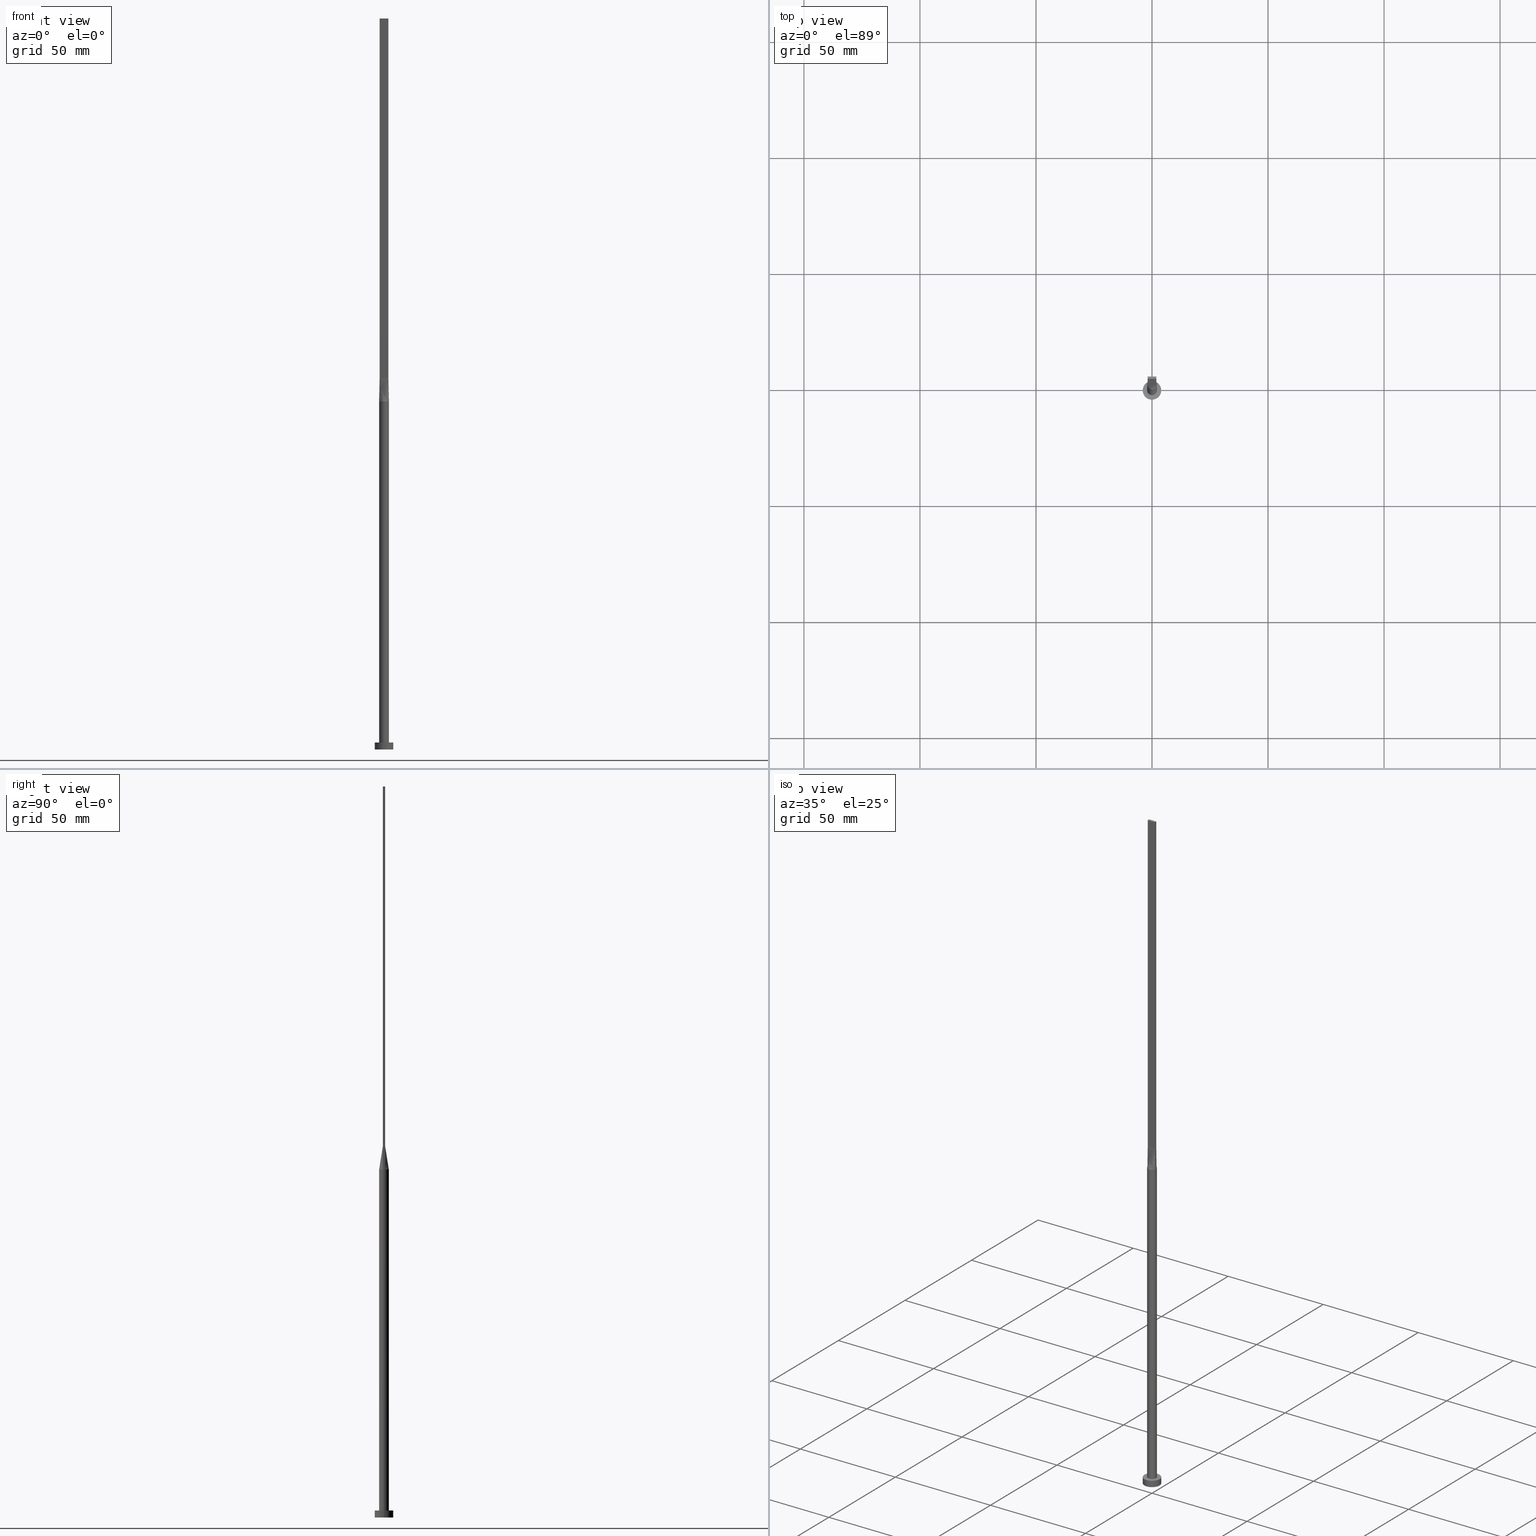
[diagram: canonical four-view strip — front | top / right | iso, engineering-drawing reading convention]
A machine part, canonical four-view strip (front | top / right | iso — engineering-drawing reading convention). The complete STEP part file that produces these views, byte-faithful:
ISO-10303-21;
HEADER;
FILE_DESCRIPTION (( 'STEP AP203' ),
    '1' );
FILE_NAME ('6265.STEP',
    '2023-02-13T13:20:51',
    ( '' ),
    ( '' ),
    'SwSTEP 2.0',
    'SolidWorks 2019',
    '' );
FILE_SCHEMA (( 'CONFIG_CONTROL_DESIGN' ));
ENDSEC;

DATA;
#1 = VERTEX_POINT ( 'NONE', #473 ) ;
#2 = AXIS2_PLACEMENT_3D ( 'NONE', #145, #16, #108 ) ;
#3 = CC_DESIGN_DATE_AND_TIME_ASSIGNMENT ( #298, #303, ( #184 ) ) ;
#4 = APPROVAL_ROLE ( '' ) ;
#5 = AXIS2_PLACEMENT_3D ( 'NONE', #356, #500, #581 ) ;
#6 = ORIENTED_EDGE ( 'NONE', *, *, #370, .F. ) ;
#7 = CARTESIAN_POINT ( 'NONE',  ( -1.719043754744861596, 1.223020672007445242, 149.9999999999999716 ) ) ;
#8 = CARTESIAN_POINT ( 'NONE',  ( -0.3166666666666652641, -0.4999999999999997780, 159.9999999999999716 ) ) ;
#9 = COORDINATED_UNIVERSAL_TIME_OFFSET ( 1, 0, .AHEAD. ) ;
#10 = CIRCLE ( 'NONE', #60, 4.000000000000000000 ) ;
#11 = APPROVAL_PERSON_ORGANIZATION ( #229, #418, #4 ) ;
#12 = CARTESIAN_POINT ( 'NONE',  ( 1.235326090059014614, 1.714395692508636770, 150.0000000000000568 ) ) ;
#13 = VERTEX_POINT ( 'NONE', #154 ) ;
#14 = EDGE_CURVE ( 'NONE', #186, #139, #88, .T. ) ;
#15 = CARTESIAN_POINT ( 'NONE',  ( -0.1583333333333339921, 0.5000000000000002220, 159.9999999999999716 ) ) ;
#16 = DIRECTION ( 'NONE',  ( 0.000000000000000000, 0.000000000000000000, 1.000000000000000000 ) ) ;
#17 = CARTESIAN_POINT ( 'NONE',  ( 1.235326090059013504, -1.714395692508636548, 149.9999999999999716 ) ) ;
#18 = DIRECTION ( 'NONE',  ( 1.000000000000000000, 0.000000000000000000, -0.000000000000000000 ) ) ;
#19 = EDGE_LOOP ( 'NONE', ( #263, #75 ) ) ;
#20 = AXIS2_PLACEMENT_3D ( 'NONE', #498, #87, #448 ) ;
#21 = CARTESIAN_POINT ( 'NONE',  ( 1.965428264125778535, 0.5172179642436265379, 155.0000000000000000 ) ) ;
#22 = VERTEX_POINT ( 'NONE', #322 ) ;
#23 = CARTESIAN_POINT ( 'NONE',  ( -1.899999999999999911, -0.4999999999999995559, 315.0000000000000000 ) ) ;
#24 = CARTESIAN_POINT ( 'NONE',  ( -2.100000000000000089, 0.1811271572287804221, 150.0000000000000000 ) ) ;
#25 = APPROVAL_ROLE ( '' ) ;
#26 = FACE_OUTER_BOUND ( 'NONE', #96, .T. ) ;
#27 = AXIS2_PLACEMENT_3D ( 'NONE', #271, #124, #133 ) ;
#28 = VERTEX_POINT ( 'NONE', #452 ) ;
#29 = EDGE_CURVE ( 'NONE', #457, #378, #129, .T. ) ;
#30 = CARTESIAN_POINT ( 'NONE',  ( 2.100000000000000089, 2.571758278209441957E-16, 3.000000000000000000 ) ) ;
#31 = CALENDAR_DATE ( 2023, 13, 2 ) ;
#32 = DIRECTION ( 'NONE',  ( 1.000000000000000000, 0.000000000000000000, -0.000000000000000000 ) ) ;
#33 = ORIENTED_EDGE ( 'NONE', *, *, #272, .F. ) ;
#34 = CYLINDRICAL_SURFACE ( 'NONE', #310, 4.000000000000000000 ) ;
#35 = AXIS2_PLACEMENT_3D ( 'NONE', #221, #265, #363 ) ;
#36 = B_SPLINE_SURFACE_WITH_KNOTS ( 'NONE', 3, 1, ( 
 ( #406, #258 ),
 ( #563, #351 ),
 ( #213, #240 ),
 ( #447, #275 ),
 ( #38, #415 ),
 ( #12, #238 ),
 ( #187, #57 ),
 ( #337, #466 ),
 ( #331, #515 ),
 ( #417, #15 ),
 ( #105, #192 ),
 ( #551, #469 ),
 ( #194, #98 ),
 ( #54, #231 ),
 ( #7, #333 ),
 ( #58, #548 ),
 ( #335, #472 ),
 ( #297, #533 ) ),
 .UNSPECIFIED., .F., .F., .F.,
 ( 4, 2, 2, 2, 2, 2, 2, 2, 4 ),
 ( 2, 2 ),
 ( 0.000000000000000000, 0.1250000000000000278, 0.2500000000000000555, 0.3750000000000001110, 0.5000000000000000000, 0.6250000000000000000, 0.7500000000000000000, 0.8750000000000001110, 1.000000000000000000 ),
 ( 0.000000000000000000, 1.000000000000000000 ),
 .UNSPECIFIED. ) ;
#37 = CARTESIAN_POINT ( 'NONE',  ( 1.899999999999999467, 0.3333333333333337034, 159.9999999999999716 ) ) ;
#38 = CARTESIAN_POINT ( 'NONE',  ( 1.583604922800830428, 1.399063468093436624, 150.0000000000000000 ) ) ;
#39 = LINE ( 'NONE', #542, #507 ) ;
#40 = ADVANCED_FACE ( 'NONE', ( #274 ), #446, .T. ) ;
#41 = VECTOR ( 'NONE', #573, 1000.000000000000000 ) ;
#42 = ORIENTED_EDGE ( 'NONE', *, *, #512, .F. ) ;
#43 = FACE_OUTER_BOUND ( 'NONE', #223, .T. ) ;
#44 = CARTESIAN_POINT ( 'NONE',  ( 1.899999999999999023, -0.4999999999999997780, 160.0000000000000000 ) ) ;
#45 = ORIENTED_EDGE ( 'NONE', *, *, #319, .T. ) ;
#46 = DIRECTION ( 'NONE',  ( 0.000000000000000000, -0.000000000000000000, -1.000000000000000000 ) ) ;
#47 = CARTESIAN_POINT ( 'NONE',  ( 0.000000000000000000, 0.000000000000000000, 315.0000000000000000 ) ) ;
#48 = FACE_OUTER_BOUND ( 'NONE', #118, .T. ) ;
#49 = CC_DESIGN_PERSON_AND_ORGANIZATION_ASSIGNMENT ( #529, #199, ( #184 ) ) ;
#50 = CARTESIAN_POINT ( 'NONE',  ( 1.899999999999999467, 0.1666666666666671570, 159.9999999999999716 ) ) ;
#51 = PERSON ( 'NEUR�EN�', 'NEUR�EN�', 'NEUR�EN�', ('NEUR�EN�'), ('NEUR�EN�'), ('NEUR�EN�') ) ;
#52 = AXIS2_PLACEMENT_3D ( 'NONE', #206, #391, #566 ) ;
#53 = AXIS2_PLACEMENT_3D ( 'NONE', #399, #491, #328 ) ;
#54 = CARTESIAN_POINT ( 'NONE',  ( -1.583604922800830428, 1.399063468093436402, 150.0000000000000000 ) ) ;
#55 = ORIENTED_EDGE ( 'NONE', *, *, #286, .F. ) ;
#56 = CARTESIAN_POINT ( 'NONE',  ( -4.000000000000000000, 0.000000000000000000, 0.000000000000000000 ) ) ;
#57 = CARTESIAN_POINT ( 'NONE',  ( 0.6333333333333323045, 0.5000000000000002220, 159.9999999999999716 ) ) ;
#58 = CARTESIAN_POINT ( 'NONE',  ( -1.920830191244604412, 0.8725264301372623876, 150.0000000000000000 ) ) ;
#59 = ADVANCED_FACE ( 'NONE', ( #48 ), #367, .T. ) ;
#60 = AXIS2_PLACEMENT_3D ( 'NONE', #247, #302, #196 ) ;
#61 = LOCAL_TIME ( 14, 20, 51.00000000000000000, #534 ) ;
#62 = VERTEX_POINT ( 'NONE', #569 ) ;
#63 = CIRCLE ( 'NONE', #27, 2.100000000000000089 ) ;
#64 = EDGE_CURVE ( 'NONE', #450, #62, #242, .T. ) ;
#65 = LINE ( 'NONE', #484, #316 ) ;
#66 = CARTESIAN_POINT ( 'NONE',  ( 0.000000000000000000, 0.000000000000000000, 3.000000000000000000 ) ) ;
#67 = CARTESIAN_POINT ( 'NONE',  ( 0.000000000000000000, 0.000000000000000000, 3.000000000000000000 ) ) ;
#68 = CARTESIAN_POINT ( 'NONE',  ( 1.899999999999999689, 0.5000000000000002220, 315.0000000000000000 ) ) ;
#69 = CARTESIAN_POINT ( 'NONE',  ( 1.583604922800830428, 1.399063468093436624, 150.0000000000000000 ) ) ;
#70 = AXIS2_PLACEMENT_3D ( 'NONE', #295, #311, #567 ) ;
#71 = APPROVAL_STATUS ( 'not_yet_approved' ) ;
#72 = VERTEX_POINT ( 'NONE', #128 ) ;
#73 = CARTESIAN_POINT ( 'NONE',  ( 0.3166666666666676511, -0.4999999999999997780, 159.9999999999999716 ) ) ;
#74 = CARTESIAN_POINT ( 'NONE',  ( -1.987786580065029174, 0.6981017315960602598, 150.0000000000000000 ) ) ;
#75 = ORIENTED_EDGE ( 'NONE', *, *, #237, .F. ) ;
#76 = CARTESIAN_POINT ( 'NONE',  ( 0.1583333333333341586, -0.4999999999999997780, 159.9999999999999716 ) ) ;
#77 = CARTESIAN_POINT ( 'NONE',  ( -1.583604922800830428, 1.399063468093436402, 150.0000000000000000 ) ) ;
#78 = ORIENTED_EDGE ( 'NONE', *, *, #159, .F. ) ;
#79 = ADVANCED_FACE ( 'NONE', ( #369 ), #454, .T. ) ;
#80 = DIRECTION ( 'NONE',  ( -0.000000000000000000, -0.000000000000000000, -1.000000000000000000 ) ) ;
#81 = B_SPLINE_SURFACE_WITH_KNOTS ( 'NONE', 3, 1, ( 
 ( #189, #371 ),
 ( #334, #511 ),
 ( #324, #510 ),
 ( #464, #459 ),
 ( #501, #285 ),
 ( #549, #414 ),
 ( #413, #277 ),
 ( #327, #8 ),
 ( #279, #431 ),
 ( #560, #76 ),
 ( #516, #73 ),
 ( #203, #419 ),
 ( #17, #345 ),
 ( #249, #379 ),
 ( #246, #540 ),
 ( #453, #444 ),
 ( #439, #397 ),
 ( #228, #44 ) ),
 .UNSPECIFIED., .F., .F., .F.,
 ( 4, 2, 2, 2, 2, 2, 2, 2, 4 ),
 ( 2, 2 ),
 ( 0.000000000000000000, 0.1250000000000000555, 0.2500000000000001665, 0.3750000000000002776, 0.5000000000000003331, 0.6250000000000002220, 0.7500000000000002220, 0.8750000000000001110, 1.000000000000000000 ),
 ( 0.000000000000000000, 1.000000000000000000 ),
 .UNSPECIFIED. ) ;
#82 = PERSON_AND_ORGANIZATION ( #51, #125 ) ;
#83 = ORIENTED_EDGE ( 'NONE', *, *, #522, .T. ) ;
#84 = CARTESIAN_POINT ( 'NONE',  ( -1.899999999999999689, 0.5000000000000002220, 160.0000000000000000 ) ) ;
#85 = PERSON_AND_ORGANIZATION ( #51, #125 ) ;
#86 = LINE ( 'NONE', #317, #493 ) ;
#87 = DIRECTION ( 'NONE',  ( 0.000000000000000000, 0.000000000000000000, 1.000000000000000000 ) ) ;
#88 = CIRCLE ( 'NONE', #326, 4.000000000000000000 ) ;
#89 = ORIENTED_EDGE ( 'NONE', *, *, #201, .F. ) ;
#90 = CC_DESIGN_PERSON_AND_ORGANIZATION_ASSIGNMENT ( #168, #427, ( #287 ) ) ;
#91 = CARTESIAN_POINT ( 'NONE',  ( 2.076193315816325047, 0.3621561357411385851, 150.0000000000000000 ) ) ;
#92 = DIRECTION ( 'NONE',  ( 0.01308445504626044344, -0.003443277643752730606, 0.9999084662483913588 ) ) ;
#93 = CARTESIAN_POINT ( 'NONE',  ( 0.000000000000000000, 0.000000000000000000, 3.000000000000000000 ) ) ;
#94 = AXIS2_PLACEMENT_3D ( 'NONE', #308, #158, #525 ) ;
#95 = EDGE_CURVE ( 'NONE', #318, #163, #63, .T. ) ;
#96 = EDGE_LOOP ( 'NONE', ( #570, #78, #42, #299 ) ) ;
#97 = CARTESIAN_POINT ( 'NONE',  ( -1.899999999999999467, 0.1666666666666668795, 159.9999999999999716 ) ) ;
#98 = CARTESIAN_POINT ( 'NONE',  ( -0.7916666666666670737, 0.5000000000000002220, 159.9999999999999716 ) ) ;
#99 = DATE_AND_TIME ( #504, #132 ) ;
#100 = EDGE_LOOP ( 'NONE', ( #110, #278, #226, #455 ) ) ;
#101 = CIRCLE ( 'NONE', #52, 2.100000000000000089 ) ;
#102 = APPROVAL_PERSON_ORGANIZATION ( #256, #490, #261 ) ;
#103 = ADVANCED_FACE ( 'NONE', ( #262 ), #451, .T. ) ;
#104 = PLANE ( 'NONE',  #312 ) ;
#105 = CARTESIAN_POINT ( 'NONE',  ( -0.5389299406762299016, 2.046272663899431965, 150.0000000000000000 ) ) ;
#106 = EDGE_CURVE ( 'NONE', #556, #378, #471, .T. ) ;
#107 = CARTESIAN_POINT ( 'NONE',  ( 2.030996101999494652, 0.5344731476277209126, 150.0000000000000000 ) ) ;
#108 = DIRECTION ( 'NONE',  ( 1.000000000000000000, 0.000000000000000000, 0.000000000000000000 ) ) ;
#109 = LINE ( 'NONE', #116, #576 ) ;
#110 = ORIENTED_EDGE ( 'NONE', *, *, #286, .T. ) ;
#111 = DIRECTION ( 'NONE',  ( 1.000000000000000000, -5.706327223607918787E-17, 0.000000000000000000 ) ) ;
#112 = CARTESIAN_POINT ( 'NONE',  ( -1.899999999999999689, 0.5000000000000002220, 315.0000000000000000 ) ) ;
#113 = CARTESIAN_POINT ( 'NONE',  ( 1.719043754744862040, 1.223020672007445464, 149.9999999999999716 ) ) ;
#114 = COORDINATED_UNIVERSAL_TIME_OFFSET ( 1, 0, .AHEAD. ) ;
#115 = EDGE_LOOP ( 'NONE', ( #338, #470, #173, #205, #377 ) ) ;
#116 = CARTESIAN_POINT ( 'NONE',  ( -1.899999999999999689, 0.5000000000000002220, 160.0000000000000000 ) ) ;
#117 = EDGE_CURVE ( 'NONE', #284, #424, #461, .T. ) ;
#118 = EDGE_LOOP ( 'NONE', ( #577, #558, #130, #235, #460 ) ) ;
#119 = CARTESIAN_POINT ( 'NONE',  ( 0.000000000000000000, 0.000000000000000000, 0.000000000000000000 ) ) ;
#120 = ORIENTED_EDGE ( 'NONE', *, *, #117, .T. ) ;
#121 = DIRECTION ( 'NONE',  ( 2.168404344971009361E-16, 1.000000000000000000, 0.000000000000000000 ) ) ;
#122 = CARTESIAN_POINT ( 'NONE',  ( 2.100000000000000089, 3.372022381799045987E-17, 149.9999999999999716 ) ) ;
#123 = CARTESIAN_POINT ( 'NONE',  ( 1.899999999999999689, 0.5000000000000002220, 315.0000000000000000 ) ) ;
#124 = DIRECTION ( 'NONE',  ( 0.000000000000000000, 0.000000000000000000, 1.000000000000000000 ) ) ;
#125 = ORGANIZATION ( 'NEUR�EN�', 'NEUR�EN�', '' ) ;
#126 = CARTESIAN_POINT ( 'NONE',  ( 2.030856528251557158, -0.5344359284872530758, 150.0000000000000000 ) ) ;
#127 = ADVANCED_FACE ( 'NONE', ( #547 ), #81, .T. ) ;
#128 = CARTESIAN_POINT ( 'NONE',  ( -1.899999999999999911, -0.4999999999999995559, 315.0000000000000000 ) ) ;
#129 = LINE ( 'NONE', #179, #176 ) ;
#130 = ORIENTED_EDGE ( 'NONE', *, *, #222, .T. ) ;
#131 = EDGE_CURVE ( 'NONE', #28, #147, #86, .T. ) ;
#132 = LOCAL_TIME ( 14, 20, 51.00000000000000000, #137 ) ;
#133 = DIRECTION ( 'NONE',  ( 1.000000000000000000, 0.000000000000000000, 0.000000000000000000 ) ) ;
#134 = DATE_AND_TIME ( #375, #514 ) ;
#135 = ORIENTED_EDGE ( 'NONE', *, *, #361, .F. ) ;
#136 = AXIS2_PLACEMENT_3D ( 'NONE', #47, #313, #572 ) ;
#137 = COORDINATED_UNIVERSAL_TIME_OFFSET ( 1, 0, .AHEAD. ) ;
#138 = CIRCLE ( 'NONE', #148, 2.100000000000000089 ) ;
#139 = VERTEX_POINT ( 'NONE', #495 ) ;
#140 = VECTOR ( 'NONE', #403, 1000.000000000000000 ) ;
#141 = ADVANCED_FACE ( 'NONE', ( #268 ), #175, .T. ) ;
#142 = DIRECTION ( 'NONE',  ( 1.000000000000000000, 0.000000000000000000, 0.000000000000000000 ) ) ;
#143 = PERSON_AND_ORGANIZATION_ROLE ( 'classification_officer' ) ;
#144 = CARTESIAN_POINT ( 'NONE',  ( 0.000000000000000000, 0.000000000000000000, 150.0000000000000000 ) ) ;
#145 = CARTESIAN_POINT ( 'NONE',  ( 0.000000000000000000, 0.000000000000000000, 150.0000000000000000 ) ) ;
#146 = CC_DESIGN_PERSON_AND_ORGANIZATION_ASSIGNMENT ( #181, #143, ( #489 ) ) ;
#147 = VERTEX_POINT ( 'NONE', #354 ) ;
#148 = AXIS2_PLACEMENT_3D ( 'NONE', #144, #552, #341 ) ;
#149 = CC_DESIGN_APPROVAL ( #191, ( #184 ) ) ;
#150 = CARTESIAN_POINT ( 'NONE',  ( -1.920830191244604412, 0.8725264301372623876, 150.0000000000000000 ) ) ;
#151 = EDGE_LOOP ( 'NONE', ( #519, #45, #509, #288 ) ) ;
#152 = FACE_OUTER_BOUND ( 'NONE', #492, .T. ) ;
#153 = AXIS2_PLACEMENT_3D ( 'NONE', #224, #411, #142 ) ;
#154 = CARTESIAN_POINT ( 'NONE',  ( 1.899999999999999023, -0.4999999999999997780, 315.0000000000000000 ) ) ;
#155 = CARTESIAN_POINT ( 'NONE',  ( 4.000000000000000000, 4.898587196589412829E-16, 3.000000000000000000 ) ) ;
#156 = CARTESIAN_POINT ( 'NONE',  ( -0.5389299406762299016, 2.046272663899431965, 150.0000000000000000 ) ) ;
#157 = CALENDAR_DATE ( 2023, 13, 2 ) ;
#158 = DIRECTION ( 'NONE',  ( 0.000000000000000000, 0.000000000000000000, 1.000000000000000000 ) ) ;
#159 = EDGE_CURVE ( 'NONE', #479, #147, #65, .T. ) ;
#160 = CIRCLE ( 'NONE', #20, 2.100000000000000089 ) ;
#161 = FACE_OUTER_BOUND ( 'NONE', #19, .T. ) ;
#162 = CARTESIAN_POINT ( 'NONE',  ( -0.2698109971861040179, 2.100000000000000089, 149.9999999999999716 ) ) ;
#163 = VERTEX_POINT ( 'NONE', #350 ) ;
#164 = CARTESIAN_POINT ( 'NONE',  ( -2.100000000000000089, 0.000000000000000000, 3.000000000000000000 ) ) ;
#165 = VECTOR ( 'NONE', #220, 1000.000000000000000 ) ;
#166 = MECHANICAL_CONTEXT ( 'NONE', #346, 'mechanical' ) ;
#167 = CARTESIAN_POINT ( 'NONE',  ( -1.899999999999999689, 0.5000000000000002220, 315.0000000000000000 ) ) ;
#168 = PERSON_AND_ORGANIZATION ( #51, #125 ) ;
#169 = CARTESIAN_POINT ( 'NONE',  ( 0.000000000000000000, 0.000000000000000000, 150.0000000000000000 ) ) ;
#170 = ADVANCED_FACE ( 'NONE', ( #204 ), #523, .F. ) ;
#171 = LINE ( 'NONE', #410, #219 ) ;
#172 = LINE ( 'NONE', #360, #330 ) ;
#173 = ORIENTED_EDGE ( 'NONE', *, *, #29, .F. ) ;
#174 = CARTESIAN_POINT ( 'NONE',  ( 1.899999999999999689, -0.1666666666666661856, 159.9999999999999716 ) ) ;
#175 = CYLINDRICAL_SURFACE ( 'NONE', #200, 4.000000000000000000 ) ;
#176 = VECTOR ( 'NONE', #544, 1000.000000000000000 ) ;
#177 = VERTEX_POINT ( 'NONE', #30 ) ;
#178 = ADVANCED_FACE ( 'NONE', ( #520, #152 ), #198, .T. ) ;
#179 = CARTESIAN_POINT ( 'NONE',  ( -1.965428264125778979, -0.5172179642436255387, 155.0000000000000000 ) ) ;
#180 = LOCAL_TIME ( 14, 20, 51.00000000000000000, #438 ) ;
#181 = PERSON_AND_ORGANIZATION ( #51, #125 ) ;
#182 = ORIENTED_EDGE ( 'NONE', *, *, #541, .F. ) ;
#183 = ORIENTED_EDGE ( 'NONE', *, *, #370, .T. ) ;
#184 = PRODUCT_DEFINITION ( 'NEZN�M�', '', #287, #467 ) ;
#185 = SHAPE_DEFINITION_REPRESENTATION ( #392, #210 ) ;
#186 = VERTEX_POINT ( 'NONE', #342 ) ;
#187 = CARTESIAN_POINT ( 'NONE',  ( 1.021961681204346606, 1.852908961101259244, 150.0000000000000284 ) ) ;
#188 = ORIENTED_EDGE ( 'NONE', *, *, #131, .T. ) ;
#189 = CARTESIAN_POINT ( 'NONE',  ( -2.030856528251558046, -0.5344359284872515214, 150.0000000000000000 ) ) ;
#190 = ORIENTED_EDGE ( 'NONE', *, *, #505, .F. ) ;
#191 = APPROVAL ( #71, 'NEUR�EN�' ) ;
#192 = CARTESIAN_POINT ( 'NONE',  ( -0.3166666666666672625, 0.5000000000000002220, 159.9999999999999716 ) ) ;
#193 = CARTESIAN_POINT ( 'NONE',  ( 0.2698109971861041290, 2.100000000000000089, 149.9999999999999716 ) ) ;
#194 = CARTESIAN_POINT ( 'NONE',  ( -1.235326090059014836, 1.714395692508636326, 150.0000000000000000 ) ) ;
#195 = CC_DESIGN_SECURITY_CLASSIFICATION ( #489, ( #287 ) ) ;
#196 = DIRECTION ( 'NONE',  ( 1.000000000000000000, 0.000000000000000000, 0.000000000000000000 ) ) ;
#197 = DIRECTION ( 'NONE',  ( -0.000000000000000000, -0.000000000000000000, -1.000000000000000000 ) ) ;
#198 = PLANE ( 'NONE',  #488 ) ;
#199 = PERSON_AND_ORGANIZATION_ROLE ( 'creator' ) ;
#200 = AXIS2_PLACEMENT_3D ( 'NONE', #93, #339, #329 ) ;
#201 = EDGE_CURVE ( 'NONE', #22, #62, #477, .T. ) ;
#202 = PLANE ( 'NONE',  #236 ) ;
#203 = CARTESIAN_POINT ( 'NONE',  ( 1.021961681204344830, -1.852908961101259910, 150.0000000000000000 ) ) ;
#204 = FACE_OUTER_BOUND ( 'NONE', #449, .T. ) ;
#205 = ORIENTED_EDGE ( 'NONE', *, *, #230, .F. ) ;
#206 = CARTESIAN_POINT ( 'NONE',  ( 0.000000000000000000, 0.000000000000000000, 3.000000000000000000 ) ) ;
#207 = APPROVAL_PERSON_ORGANIZATION ( #85, #191, #25 ) ;
#208 = CARTESIAN_POINT ( 'NONE',  ( -1.899999999999999467, 0.3333333333333335369, 159.9999999999999716 ) ) ;
#209 = DATE_AND_TIME ( #31, #180 ) ;
#210 = ADVANCED_BREP_SHAPE_REPRESENTATION ( '6265', ( #227, #94 ), #270 ) ;
#211 = ORIENTED_EDGE ( 'NONE', *, *, #64, .T. ) ;
#212 = PLANE ( 'NONE',  #332 ) ;
#213 = CARTESIAN_POINT ( 'NONE',  ( 1.920830191244603746, 0.8725264301372623876, 149.9999999999999716 ) ) ;
#214 = EDGE_CURVE ( 'NONE', #163, #28, #441, .T. ) ;
#215 = ORIENTED_EDGE ( 'NONE', *, *, #344, .F. ) ;
#216 = DIRECTION ( 'NONE',  ( -2.168404344971009361E-16, -1.000000000000000000, 0.000000000000000000 ) ) ;
#217 = CARTESIAN_POINT ( 'NONE',  ( -2.031004407172260162, -0.5344754071304557153, 150.0000000000000000 ) ) ;
#218 = CARTESIAN_POINT ( 'NONE',  ( -1.899999999999999911, -0.4999999999999995559, 160.0000000000000000 ) ) ;
#219 = VECTOR ( 'NONE', #320, 1000.000000000000000 ) ;
#220 = DIRECTION ( 'NONE',  ( -2.168404344971008868E-16, 1.000000000000000000, -0.000000000000000000 ) ) ;
#221 = CARTESIAN_POINT ( 'NONE',  ( 0.000000000000000000, 0.000000000000000000, 150.0000000000000000 ) ) ;
#222 = EDGE_CURVE ( 'NONE', #163, #62, #528, .T. ) ;
#223 = EDGE_LOOP ( 'NONE', ( #323, #188, #487, #580 ) ) ;
#224 = CARTESIAN_POINT ( 'NONE',  ( 0.000000000000000000, 0.000000000000000000, 0.000000000000000000 ) ) ;
#225 = CARTESIAN_POINT ( 'NONE',  ( 2.076193315816324603, -0.3621561357411388626, 150.0000000000000568 ) ) ;
#226 = ORIENTED_EDGE ( 'NONE', *, *, #336, .F. ) ;
#227 = MANIFOLD_SOLID_BREP ( 'P�idat vysunut�m5', #276 ) ;
#228 = CARTESIAN_POINT ( 'NONE',  ( 2.030856528251557158, -0.5344359284872526317, 150.0000000000000000 ) ) ;
#229 = PERSON_AND_ORGANIZATION ( #51, #125 ) ;
#230 = EDGE_CURVE ( 'NONE', #147, #457, #109, .T. ) ;
#231 = CARTESIAN_POINT ( 'NONE',  ( -1.108333333333333615, 0.5000000000000002220, 159.9999999999999716 ) ) ;
#232 = ORIENTED_EDGE ( 'NONE', *, *, #393, .F. ) ;
#233 = CARTESIAN_POINT ( 'NONE',  ( -1.899999999999999911, -0.4999999999999995559, 160.0000000000000000 ) ) ;
#234 = ORIENTED_EDGE ( 'NONE', *, *, #579, .T. ) ;
#235 = ORIENTED_EDGE ( 'NONE', *, *, #64, .F. ) ;
#236 = AXIS2_PLACEMENT_3D ( 'NONE', #301, #254, #388 ) ;
#237 = EDGE_CURVE ( 'NONE', #424, #284, #10, .T. ) ;
#238 = CARTESIAN_POINT ( 'NONE',  ( 0.7916666666666657415, 0.5000000000000002220, 159.9999999999999716 ) ) ;
#239 = ORIENTED_EDGE ( 'NONE', *, *, #468, .F. ) ;
#240 = CARTESIAN_POINT ( 'NONE',  ( 1.583333333333332815, 0.5000000000000002220, 160.0000000000000000 ) ) ;
#241 = DIRECTION ( 'NONE',  ( 5.706327223607920020E-17, 1.000000000000000000, -0.000000000000000000 ) ) ;
#242 = LINE ( 'NONE', #383, #165 ) ;
#243 = EDGE_LOOP ( 'NONE', ( #546, #232, #343, #352 ) ) ;
#244 = LINE ( 'NONE', #155, #475 ) ;
#245 = LINE ( 'NONE', #23, #260 ) ;
#246 = CARTESIAN_POINT ( 'NONE',  ( 1.719043754744861374, -1.223020672007445908, 150.0000000000000568 ) ) ;
#247 = CARTESIAN_POINT ( 'NONE',  ( 0.000000000000000000, 0.000000000000000000, 0.000000000000000000 ) ) ;
#248 = ADVANCED_FACE ( 'NONE', ( #474 ), #486, .T. ) ;
#249 = CARTESIAN_POINT ( 'NONE',  ( 1.583604922800829984, -1.399063468093436846, 149.9999999999999432 ) ) ;
#250 = DIRECTION ( 'NONE',  ( -0.01308445504626044344, -0.003443277643752796092, 0.9999084662483913588 ) ) ;
#251 = CARTESIAN_POINT ( 'NONE',  ( 1.899999999999999689, 0.5000000000000002220, 160.0000000000000000 ) ) ;
#252 = ORIENTED_EDGE ( 'NONE', *, *, #381, .T. ) ;
#253 = CARTESIAN_POINT ( 'NONE',  ( -1.899999999999999911, -0.4999999999999995559, 315.0000000000000000 ) ) ;
#254 = DIRECTION ( 'NONE',  ( -1.000000000000000000, 6.505213034913026604E-16, 0.000000000000000000 ) ) ;
#255 = CARTESIAN_POINT ( 'NONE',  ( -2.030856528251557602, 0.5344359284872521876, 150.0000000000000000 ) ) ;
#256 = PERSON_AND_ORGANIZATION ( #51, #125 ) ;
#257 = CC_DESIGN_PERSON_AND_ORGANIZATION_ASSIGNMENT ( #82, #440, ( #287 ) ) ;
#258 = CARTESIAN_POINT ( 'NONE',  ( 1.899999999999999689, 0.5000000000000002220, 160.0000000000000000 ) ) ;
#259 = DIRECTION ( 'NONE',  ( 0.000000000000000000, 0.000000000000000000, 1.000000000000000000 ) ) ;
#260 = VECTOR ( 'NONE', #353, 1000.000000000000000 ) ;
#261 = APPROVAL_ROLE ( '' ) ;
#262 = FACE_OUTER_BOUND ( 'NONE', #433, .T. ) ;
#263 = ORIENTED_EDGE ( 'NONE', *, *, #117, .F. ) ;
#264 = DIRECTION ( 'NONE',  ( -1.000000000000000000, -0.000000000000000000, -0.000000000000000000 ) ) ;
#265 = DIRECTION ( 'NONE',  ( 0.000000000000000000, 0.000000000000000000, 1.000000000000000000 ) ) ;
#266 = CARTESIAN_POINT ( 'NONE',  ( 2.100000000000000089, 0.1811271572287802556, 149.9999999999999716 ) ) ;
#267 = ORIENTED_EDGE ( 'NONE', *, *, #541, .T. ) ;
#268 = FACE_OUTER_BOUND ( 'NONE', #463, .T. ) ;
#269 = AXIS2_PLACEMENT_3D ( 'NONE', #394, #241, #386 ) ;
#270 =( GEOMETRIC_REPRESENTATION_CONTEXT ( 3 ) GLOBAL_UNCERTAINTY_ASSIGNED_CONTEXT ( ( #555 ) ) GLOBAL_UNIT_ASSIGNED_CONTEXT ( ( #539, #537, #429 ) ) REPRESENTATION_CONTEXT ( 'NONE', 'WORKASPACE' ) );
#271 = CARTESIAN_POINT ( 'NONE',  ( 0.000000000000000000, 0.000000000000000000, 150.0000000000000000 ) ) ;
#272 = EDGE_CURVE ( 'NONE', #28, #556, #513, .T. ) ;
#273 = CARTESIAN_POINT ( 'NONE',  ( -1.899999999999999689, -0.1666666666666663521, 159.9999999999999716 ) ) ;
#274 = FACE_OUTER_BOUND ( 'NONE', #314, .T. ) ;
#275 = CARTESIAN_POINT ( 'NONE',  ( 1.266666666666665941, 0.5000000000000002220, 159.9999999999999716 ) ) ;
#276 = CLOSED_SHELL ( 'NONE', ( #79, #292, #141, #178, #568, #40, #127, #59, #248, #478, #434, #408, #170, #545, #103 ) ) ;
#277 = CARTESIAN_POINT ( 'NONE',  ( -0.6333333333333316384, -0.4999999999999996669, 159.9999999999999716 ) ) ;
#278 = ORIENTED_EDGE ( 'NONE', *, *, #531, .T. ) ;
#279 = CARTESIAN_POINT ( 'NONE',  ( -0.2698109971861053502, -2.100000000000000089, 150.0000000000000568 ) ) ;
#280 = VECTOR ( 'NONE', #80, 1000.000000000000000 ) ;
#281 = APPROVAL_DATE_TIME ( #99, #418 ) ;
#282 = CARTESIAN_POINT ( 'NONE',  ( -2.030856528251558046, -0.5344359284872516325, 150.0000000000000000 ) ) ;
#283 = SECURITY_CLASSIFICATION_LEVEL ( 'unclassified' ) ;
#284 = VERTEX_POINT ( 'NONE', #56 ) ;
#285 = CARTESIAN_POINT ( 'NONE',  ( -1.108333333333332282, -0.4999999999999995559, 159.9999999999999716 ) ) ;
#286 = EDGE_CURVE ( 'NONE', #378, #1, #138, .T. ) ;
#287 = PRODUCT_DEFINITION_FORMATION_WITH_SPECIFIED_SOURCE ( 'LIBOVOLN�', '', #357, .NOT_KNOWN. ) ;
#288 = ORIENTED_EDGE ( 'NONE', *, *, #381, .F. ) ;
#289 = CARTESIAN_POINT ( 'NONE',  ( 1.920830191244603746, 0.8725264301372623876, 149.9999999999999716 ) ) ;
#290 = ORIENTED_EDGE ( 'NONE', *, *, #376, .T. ) ;
#291 = DIRECTION ( 'NONE',  ( -1.000000000000000000, 0.000000000000000000, 0.000000000000000000 ) ) ;
#292 = ADVANCED_FACE ( 'NONE', ( #443 ), #34, .T. ) ;
#293 = CARTESIAN_POINT ( 'NONE',  ( -2.100000000000000089, 0.000000000000000000, 150.0000000000000000 ) ) ;
#294 = LINE ( 'NONE', #526, #465 ) ;
#295 = CARTESIAN_POINT ( 'NONE',  ( 0.000000000000000000, 0.000000000000000000, 150.0000000000000000 ) ) ;
#296 = DIRECTION ( 'NONE',  ( 0.000000000000000000, 0.000000000000000000, 1.000000000000000000 ) ) ;
#297 = CARTESIAN_POINT ( 'NONE',  ( -2.030856528251557602, 0.5344359284872521876, 150.0000000000000000 ) ) ;
#298 = DATE_AND_TIME ( #157, #476 ) ;
#299 = ORIENTED_EDGE ( 'NONE', *, *, #201, .T. ) ;
#300 = DIRECTION ( 'NONE',  ( 6.505213034913026604E-16, 1.000000000000000000, 0.000000000000000000 ) ) ;
#301 = CARTESIAN_POINT ( 'NONE',  ( 1.899999999999999023, -0.4999999999999997780, 315.0000000000000000 ) ) ;
#302 = DIRECTION ( 'NONE',  ( 0.000000000000000000, 0.000000000000000000, 1.000000000000000000 ) ) ;
#303 = DATE_TIME_ROLE ( 'creation_date' ) ;
#304 = CC_DESIGN_PERSON_AND_ORGANIZATION_ASSIGNMENT ( #538, #401, ( #357 ) ) ;
#305 = CARTESIAN_POINT ( 'NONE',  ( 1.021961681204346606, 1.852908961101259244, 150.0000000000000284 ) ) ;
#306 = APPROVAL_DATE_TIME ( #574, #191 ) ;
#307 = ORIENTED_EDGE ( 'NONE', *, *, #361, .T. ) ;
#308 = CARTESIAN_POINT ( 'NONE',  ( 0.000000000000000000, 0.000000000000000000, 0.000000000000000000 ) ) ;
#309 = LINE ( 'NONE', #84, #458 ) ;
#310 = AXIS2_PLACEMENT_3D ( 'NONE', #67, #562, #291 ) ;
#311 = DIRECTION ( 'NONE',  ( 0.000000000000000000, 0.000000000000000000, 1.000000000000000000 ) ) ;
#312 = AXIS2_PLACEMENT_3D ( 'NONE', #123, #373, #46 ) ;
#313 = DIRECTION ( 'NONE',  ( 0.000000000000000000, 0.000000000000000000, 1.000000000000000000 ) ) ;
#314 = EDGE_LOOP ( 'NONE', ( #239, #565, #55, #543, #365, #307 ) ) ;
#315 = DIRECTION ( 'NONE',  ( -0.000000000000000000, -0.000000000000000000, -1.000000000000000000 ) ) ;
#316 = VECTOR ( 'NONE', #389, 1000.000000000000000 ) ;
#317 = CARTESIAN_POINT ( 'NONE',  ( -1.965428264125778535, 0.5172179642436262048, 155.0000000000000000 ) ) ;
#318 = VERTEX_POINT ( 'NONE', #122 ) ;
#319 = EDGE_CURVE ( 'NONE', #186, #424, #244, .T. ) ;
#320 = DIRECTION ( 'NONE',  ( -0.000000000000000000, -0.000000000000000000, -1.000000000000000000 ) ) ;
#321 = DIRECTION ( 'NONE',  ( -1.000000000000000000, 0.000000000000000000, 0.000000000000000000 ) ) ;
#322 = CARTESIAN_POINT ( 'NONE',  ( 1.899999999999999689, 0.5000000000000002220, 315.0000000000000000 ) ) ;
#323 = ORIENTED_EDGE ( 'NONE', *, *, #214, .T. ) ;
#324 = CARTESIAN_POINT ( 'NONE',  ( -1.920830191244604412, -0.8725264301372614995, 150.0000000000000284 ) ) ;
#325 = CARTESIAN_POINT ( 'NONE',  ( 1.899999999999999689, -0.3333333333333329263, 159.9999999999999716 ) ) ;
#326 = AXIS2_PLACEMENT_3D ( 'NONE', #66, #348, #494 ) ;
#327 = CARTESIAN_POINT ( 'NONE',  ( -0.5389299406762309008, -2.046272663899432409, 150.0000000000000568 ) ) ;
#328 = DIRECTION ( 'NONE',  ( 1.000000000000000000, 0.000000000000000000, 0.000000000000000000 ) ) ;
#329 = DIRECTION ( 'NONE',  ( -1.000000000000000000, 0.000000000000000000, 0.000000000000000000 ) ) ;
#330 = VECTOR ( 'NONE', #535, 1000.000000000000000 ) ;
#331 = CARTESIAN_POINT ( 'NONE',  ( 0.2698109971861041290, 2.100000000000000089, 149.9999999999999716 ) ) ;
#332 = AXIS2_PLACEMENT_3D ( 'NONE', #398, #571, #121 ) ;
#333 = CARTESIAN_POINT ( 'NONE',  ( -1.266666666666666829, 0.5000000000000002220, 159.9999999999999716 ) ) ;
#334 = CARTESIAN_POINT ( 'NONE',  ( -1.987786580065029840, -0.6981017315960599268, 150.0000000000000568 ) ) ;
#335 = CARTESIAN_POINT ( 'NONE',  ( -1.987786580065029174, 0.6981017315960602598, 150.0000000000000000 ) ) ;
#336 = EDGE_CURVE ( 'NONE', #457, #450, #349, .T. ) ;
#337 = CARTESIAN_POINT ( 'NONE',  ( 0.5389299406762297906, 2.046272663899431077, 150.0000000000000000 ) ) ;
#338 = ORIENTED_EDGE ( 'NONE', *, *, #272, .T. ) ;
#339 = DIRECTION ( 'NONE',  ( -0.000000000000000000, -0.000000000000000000, -1.000000000000000000 ) ) ;
#340 = ORIENTED_EDGE ( 'NONE', *, *, #393, .T. ) ;
#341 = DIRECTION ( 'NONE',  ( 1.000000000000000000, 0.000000000000000000, 0.000000000000000000 ) ) ;
#342 = CARTESIAN_POINT ( 'NONE',  ( 4.000000000000000000, 4.898587196589412829E-16, 3.000000000000000000 ) ) ;
#343 = ORIENTED_EDGE ( 'NONE', *, *, #522, .F. ) ;
#344 = EDGE_CURVE ( 'NONE', #13, #22, #294, .T. ) ;
#345 = CARTESIAN_POINT ( 'NONE',  ( 0.7916666666666676289, -0.4999999999999997780, 159.9999999999999716 ) ) ;
#346 = APPLICATION_CONTEXT ( 'configuration controlled 3d designs of mechanical parts and assemblies' ) ;
#347 = CARTESIAN_POINT ( 'NONE',  ( 1.899999999999999689, 0.5000000000000002220, 315.0000000000000000 ) ) ;
#348 = DIRECTION ( 'NONE',  ( 0.000000000000000000, 0.000000000000000000, 1.000000000000000000 ) ) ;
#349 = LINE ( 'NONE', #521, #423 ) ;
#350 = CARTESIAN_POINT ( 'NONE',  ( 2.030996101999494652, 0.5344731476277209126, 150.0000000000000000 ) ) ;
#351 = CARTESIAN_POINT ( 'NONE',  ( 1.741666666666666252, 0.5000000000000002220, 160.0000000000000000 ) ) ;
#352 = ORIENTED_EDGE ( 'NONE', *, *, #159, .T. ) ;
#353 = DIRECTION ( 'NONE',  ( 1.000000000000000000, -5.706327223607920020E-17, 0.000000000000000000 ) ) ;
#354 = CARTESIAN_POINT ( 'NONE',  ( -1.899999999999999689, 0.5000000000000002220, 160.0000000000000000 ) ) ;
#355 = EDGE_LOOP ( 'NONE', ( #211, #89, #215, #290 ) ) ;
#356 = CARTESIAN_POINT ( 'NONE',  ( 0.000000000000000000, 0.000000000000000000, 150.0000000000000000 ) ) ;
#357 = PRODUCT ( '6265', '6265', '', ( #166 ) ) ;
#358 = LINE ( 'NONE', #480, #140 ) ;
#359 = AXIS2_PLACEMENT_3D ( 'NONE', #119, #259, #32 ) ;
#360 = CARTESIAN_POINT ( 'NONE',  ( -4.000000000000000000, 0.000000000000000000, 3.000000000000000000 ) ) ;
#361 = EDGE_CURVE ( 'NONE', #407, #177, #101, .T. ) ;
#362 = EDGE_LOOP ( 'NONE', ( #532, #561, #183, #190, #33, #405 ) ) ;
#363 = DIRECTION ( 'NONE',  ( 1.000000000000000000, 0.000000000000000000, 0.000000000000000000 ) ) ;
#364 = APPROVAL_STATUS ( 'not_yet_approved' ) ;
#365 = ORIENTED_EDGE ( 'NONE', *, *, #505, .T. ) ;
#366 = CARTESIAN_POINT ( 'NONE',  ( -1.899999999999999689, -0.3333333333333329263, 159.9999999999999716 ) ) ;
#367 = B_SPLINE_SURFACE_WITH_KNOTS ( 'NONE', 3, 1, ( 
 ( #126, #456 ),
 ( #225, #325 ),
 ( #578, #174 ),
 ( #266, #50 ),
 ( #91, #37 ),
 ( #497, #251 ) ),
 .UNSPECIFIED., .F., .F., .F.,
 ( 4, 2, 4 ),
 ( 2, 2 ),
 ( 0.000000000000000000, 0.5000000000000000000, 1.000000000000000000 ),
 ( 0.000000000000000000, 1.000000000000000000 ),
 .UNSPECIFIED. ) ;
#368 = CIRCLE ( 'NONE', #70, 2.100000000000000089 ) ;
#370 = EDGE_CURVE ( 'NONE', #177, #407, #160, .T. ) ;
#369 = FACE_OUTER_BOUND ( 'NONE', #362, .T. ) ;
#371 = CARTESIAN_POINT ( 'NONE',  ( -1.899999999999999911, -0.4999999999999995559, 160.0000000000000000 ) ) ;
#372 = APPLICATION_CONTEXT ( 'configuration controlled 3d designs of mechanical parts and assemblies' ) ;
#373 = DIRECTION ( 'NONE',  ( 0.000000000000000000, -1.000000000000000000, 0.000000000000000000 ) ) ;
#374 = VECTOR ( 'NONE', #216, 1000.000000000000000 ) ;
#375 = CALENDAR_DATE ( 2023, 13, 2 ) ;
#376 = EDGE_CURVE ( 'NONE', #13, #450, #39, .T. ) ;
#377 = ORIENTED_EDGE ( 'NONE', *, *, #131, .F. ) ;
#378 = VERTEX_POINT ( 'NONE', #217 ) ;
#379 = CARTESIAN_POINT ( 'NONE',  ( 1.108333333333334059, -0.4999999999999997780, 160.0000000000000000 ) ) ;
#380 = CARTESIAN_POINT ( 'NONE',  ( -1.021961681204346384, 1.852908961101259022, 150.0000000000000000 ) ) ;
#381 = EDGE_CURVE ( 'NONE', #139, #284, #172, .T. ) ;
#382 = CARTESIAN_POINT ( 'NONE',  ( -1.719043754744861596, 1.223020672007445242, 149.9999999999999716 ) ) ;
#383 = CARTESIAN_POINT ( 'NONE',  ( 1.899999999999999689, 0.5000000000000002220, 160.0000000000000000 ) ) ;
#384 = ORIENTED_EDGE ( 'NONE', *, *, #336, .T. ) ;
#385 = FACE_OUTER_BOUND ( 'NONE', #355, .T. ) ;
#386 = DIRECTION ( 'NONE',  ( -1.000000000000000000, 5.706327223607920020E-17, 0.000000000000000000 ) ) ;
#387 = ORIENTED_EDGE ( 'NONE', *, *, #344, .T. ) ;
#388 = DIRECTION ( 'NONE',  ( -6.505213034913026604E-16, -1.000000000000000000, 0.000000000000000000 ) ) ;
#389 = DIRECTION ( 'NONE',  ( -0.000000000000000000, -0.000000000000000000, -1.000000000000000000 ) ) ;
#390 = ORIENTED_EDGE ( 'NONE', *, *, #14, .T. ) ;
#391 = DIRECTION ( 'NONE',  ( 0.000000000000000000, 0.000000000000000000, 1.000000000000000000 ) ) ;
#392 = PRODUCT_DEFINITION_SHAPE ( 'NONE', 'NONE',  #184 ) ;
#393 = EDGE_CURVE ( 'NONE', #72, #457, #518, .T. ) ;
#394 = CARTESIAN_POINT ( 'NONE',  ( -1.899999999999999911, -0.4999999999999995559, 315.0000000000000000 ) ) ;
#395 = CALENDAR_DATE ( 2023, 13, 2 ) ;
#396 = ORIENTED_EDGE ( 'NONE', *, *, #319, .F. ) ;
#397 = CARTESIAN_POINT ( 'NONE',  ( 1.741666666666666030, -0.4999999999999997780, 160.0000000000000000 ) ) ;
#398 = CARTESIAN_POINT ( 'NONE',  ( -1.899999999999999689, 0.5000000000000002220, 315.0000000000000000 ) ) ;
#399 = CARTESIAN_POINT ( 'NONE',  ( 0.000000000000000000, 0.000000000000000000, 3.000000000000000000 ) ) ;
#400 = AXIS2_PLACEMENT_3D ( 'NONE', #169, #315, #321 ) ;
#401 = PERSON_AND_ORGANIZATION_ROLE ( 'design_owner' ) ;
#402 = CARTESIAN_POINT ( 'NONE',  ( 4.000000000000000000, 4.898587196589412829E-16, 0.000000000000000000 ) ) ;
#403 = DIRECTION ( 'NONE',  ( -0.01308445504626046425, 0.003443277643752828618, 0.9999084662483913588 ) ) ;
#404 = CC_DESIGN_APPROVAL ( #418, ( #489 ) ) ;
#405 = ORIENTED_EDGE ( 'NONE', *, *, #214, .F. ) ;
#406 = CARTESIAN_POINT ( 'NONE',  ( 2.030856528251557602, 0.5344359284872521876, 150.0000000000000000 ) ) ;
#407 = VERTEX_POINT ( 'NONE', #164 ) ;
#408 = ADVANCED_FACE ( 'NONE', ( #483 ), #212, .F. ) ;
#409 = CARTESIAN_POINT ( 'NONE',  ( -2.076193315816325491, -0.3621561357411375859, 150.0000000000000000 ) ) ;
#410 = CARTESIAN_POINT ( 'NONE',  ( 2.100000000000000089, 2.571758278209441957E-16, 150.0000000000000000 ) ) ;
#411 = DIRECTION ( 'NONE',  ( 0.000000000000000000, 0.000000000000000000, 1.000000000000000000 ) ) ;
#412 = CIRCLE ( 'NONE', #53, 4.000000000000000000 ) ;
#413 = CARTESIAN_POINT ( 'NONE',  ( -1.021961681204347050, -1.852908961101258578, 149.9999999999999432 ) ) ;
#414 = CARTESIAN_POINT ( 'NONE',  ( -0.7916666666666650753, -0.4999999999999995559, 159.9999999999999716 ) ) ;
#415 = CARTESIAN_POINT ( 'NONE',  ( 1.108333333333332504, 0.5000000000000002220, 159.9999999999999716 ) ) ;
#416 = EDGE_CURVE ( 'NONE', #62, #147, #309, .T. ) ;
#417 = CARTESIAN_POINT ( 'NONE',  ( -0.2698109971861040179, 2.100000000000000089, 149.9999999999999716 ) ) ;
#418 = APPROVAL ( #364, 'NEUR�EN�' ) ;
#419 = CARTESIAN_POINT ( 'NONE',  ( 0.6333333333333344140, -0.4999999999999997780, 159.9999999999999716 ) ) ;
#420 = CARTESIAN_POINT ( 'NONE',  ( 0.5389299406762297906, 2.046272663899431077, 150.0000000000000000 ) ) ;
#421 = ORIENTED_EDGE ( 'NONE', *, *, #512, .T. ) ;
#422 = CARTESIAN_POINT ( 'NONE',  ( -1.235326090059014836, 1.714395692508636326, 150.0000000000000000 ) ) ;
#423 = VECTOR ( 'NONE', #111, 1000.000000000000000 ) ;
#424 = VERTEX_POINT ( 'NONE', #402 ) ;
#425 = DIRECTION ( 'NONE',  ( -0.000000000000000000, -0.000000000000000000, -1.000000000000000000 ) ) ;
#426 = LINE ( 'NONE', #167, #374 ) ;
#427 = PERSON_AND_ORGANIZATION_ROLE ( 'design_supplier' ) ;
#428 = CARTESIAN_POINT ( 'NONE',  ( -1.899999999999999689, 0.5000000000000002220, 160.0000000000000000 ) ) ;
#429 =( NAMED_UNIT ( * ) SI_UNIT ( $, .STERADIAN. ) SOLID_ANGLE_UNIT ( ) );
#430 = LINE ( 'NONE', #68, #41 ) ;
#431 = CARTESIAN_POINT ( 'NONE',  ( -0.1583333333333323267, -0.4999999999999997780, 160.0000000000000000 ) ) ;
#432 = DIRECTION ( 'NONE',  ( -2.168404344971009361E-16, -1.000000000000000000, 0.000000000000000000 ) ) ;
#433 = EDGE_LOOP ( 'NONE', ( #421, #83, #267, #387 ) ) ;
#434 = ADVANCED_FACE ( 'NONE', ( #26 ), #104, .F. ) ;
#435 = DIRECTION ( 'NONE',  ( -0.000000000000000000, -0.000000000000000000, -1.000000000000000000 ) ) ;
#436 = PLANE ( 'NONE',  #359 ) ;
#437 = CARTESIAN_POINT ( 'NONE',  ( -2.076193315816324603, 0.3621561357411381965, 150.0000000000000284 ) ) ;
#438 = COORDINATED_UNIVERSAL_TIME_OFFSET ( 1, 0, .AHEAD. ) ;
#439 = CARTESIAN_POINT ( 'NONE',  ( 1.987786580065029396, -0.6981017315960611480, 150.0000000000000284 ) ) ;
#440 = PERSON_AND_ORGANIZATION_ROLE ( 'creator' ) ;
#441 = B_SPLINE_CURVE_WITH_KNOTS ( 'NONE', 3,
 ( #107, #481, #289, #113, #69, #557, #305, #420, #193, #162, #156, #380, #422, #77, #382, #150, #74, #553 ),
 .UNSPECIFIED., .F., .F.,
 ( 4, 2, 2, 2, 2, 2, 2, 2, 4 ),
 ( 0.000000000000000000, 0.1250000000000000278, 0.2500000000000000555, 0.3750000000000001110, 0.5000000000000000000, 0.6250000000000000000, 0.7500000000000000000, 0.8750000000000001110, 1.000000000000000000 ),
 .UNSPECIFIED. ) ;
#442 = ORIENTED_EDGE ( 'NONE', *, *, #376, .F. ) ;
#443 = FACE_OUTER_BOUND ( 'NONE', #151, .T. ) ;
#444 = CARTESIAN_POINT ( 'NONE',  ( 1.583333333333333037, -0.4999999999999997780, 160.0000000000000000 ) ) ;
#445 = CC_DESIGN_DATE_AND_TIME_ASSIGNMENT ( #134, #462, ( #489 ) ) ;
#446 = CYLINDRICAL_SURFACE ( 'NONE', #5, 2.100000000000000089 ) ;
#447 = CARTESIAN_POINT ( 'NONE',  ( 1.719043754744862040, 1.223020672007445464, 149.9999999999999716 ) ) ;
#448 = DIRECTION ( 'NONE',  ( 1.000000000000000000, 0.000000000000000000, 0.000000000000000000 ) ) ;
#449 = EDGE_LOOP ( 'NONE', ( #384, #442, #182, #340 ) ) ;
#450 = VERTEX_POINT ( 'NONE', #503 ) ;
#451 = PLANE ( 'NONE',  #136 ) ;
#452 = CARTESIAN_POINT ( 'NONE',  ( -2.031019593402089818, 0.5344793603115657321, 150.0000000000000000 ) ) ;
#453 = CARTESIAN_POINT ( 'NONE',  ( 1.920830191244603302, -0.8725264301372632758, 150.0000000000000284 ) ) ;
#454 = CYLINDRICAL_SURFACE ( 'NONE', #400, 2.100000000000000089 ) ;
#455 = ORIENTED_EDGE ( 'NONE', *, *, #29, .T. ) ;
#456 = CARTESIAN_POINT ( 'NONE',  ( 1.899999999999999911, -0.4999999999999997780, 160.0000000000000000 ) ) ;
#457 = VERTEX_POINT ( 'NONE', #218 ) ;
#458 = VECTOR ( 'NONE', #264, 1000.000000000000000 ) ;
#459 = CARTESIAN_POINT ( 'NONE',  ( -1.266666666666665719, -0.4999999999999995559, 159.9999999999999716 ) ) ;
#460 = ORIENTED_EDGE ( 'NONE', *, *, #531, .F. ) ;
#461 = CIRCLE ( 'NONE', #153, 4.000000000000000000 ) ;
#462 = DATE_TIME_ROLE ( 'classification_date' ) ;
#463 = EDGE_LOOP ( 'NONE', ( #396, #550, #252, #120 ) ) ;
#464 = CARTESIAN_POINT ( 'NONE',  ( -1.719043754744862484, -1.223020672007444798, 150.0000000000000000 ) ) ;
#465 = VECTOR ( 'NONE', #300, 1000.000000000000000 ) ;
#466 = CARTESIAN_POINT ( 'NONE',  ( 0.3166666666666656527, 0.5000000000000002220, 159.9999999999999716 ) ) ;
#467 = DESIGN_CONTEXT ( 'detailed design', #372, 'design' ) ;
#468 = EDGE_CURVE ( 'NONE', #318, #177, #171, .T. ) ;
#469 = CARTESIAN_POINT ( 'NONE',  ( -0.6333333333333338588, 0.5000000000000002220, 159.9999999999999716 ) ) ;
#470 = ORIENTED_EDGE ( 'NONE', *, *, #106, .T. ) ;
#471 = CIRCLE ( 'NONE', #35, 2.100000000000000089 ) ;
#472 = CARTESIAN_POINT ( 'NONE',  ( -1.741666666666666696, 0.5000000000000002220, 159.9999999999999716 ) ) ;
#473 = CARTESIAN_POINT ( 'NONE',  ( 2.031027953490633031, -0.5344816358097418396, 150.0000000000000000 ) ) ;
#474 = FACE_OUTER_BOUND ( 'NONE', #115, .T. ) ;
#475 = VECTOR ( 'NONE', #425, 1000.000000000000000 ) ;
#476 = LOCAL_TIME ( 14, 20, 51.00000000000000000, #114 ) ;
#477 = LINE ( 'NONE', #347, #280 ) ;
#478 = ADVANCED_FACE ( 'NONE', ( #43 ), #36, .T. ) ;
#479 = VERTEX_POINT ( 'NONE', #112 ) ;
#480 = CARTESIAN_POINT ( 'NONE',  ( 1.965428264125778091, -0.5172179642436263158, 155.0000000000000000 ) ) ;
#481 = CARTESIAN_POINT ( 'NONE',  ( 1.987786580065029174, 0.6981017315960605929, 150.0000000000000284 ) ) ;
#482 = APPLICATION_PROTOCOL_DEFINITION ( 'international standard', 'config_control_design', 1994, #346 ) ;
#483 = FACE_OUTER_BOUND ( 'NONE', #243, .T. ) ;
#484 = CARTESIAN_POINT ( 'NONE',  ( -1.899999999999999689, 0.5000000000000002220, 315.0000000000000000 ) ) ;
#485 = APPROVAL_STATUS ( 'not_yet_approved' ) ;
#486 = B_SPLINE_SURFACE_WITH_KNOTS ( 'NONE', 3, 1, ( 
 ( #255, #428 ),
 ( #437, #208 ),
 ( #24, #97 ),
 ( #506, #273 ),
 ( #409, #366 ),
 ( #282, #233 ) ),
 .UNSPECIFIED., .F., .F., .F.,
 ( 4, 2, 4 ),
 ( 2, 2 ),
 ( 0.000000000000000000, 0.5000000000000000000, 1.000000000000000000 ),
 ( 0.000000000000000000, 1.000000000000000000 ),
 .UNSPECIFIED. ) ;
#487 = ORIENTED_EDGE ( 'NONE', *, *, #416, .F. ) ;
#488 = AXIS2_PLACEMENT_3D ( 'NONE', #517, #296, #18 ) ;
#489 = SECURITY_CLASSIFICATION ( '', '', #283 ) ;
#490 = APPROVAL ( #485, 'NEUR�EN�' ) ;
#491 = DIRECTION ( 'NONE',  ( 0.000000000000000000, 0.000000000000000000, 1.000000000000000000 ) ) ;
#492 = EDGE_LOOP ( 'NONE', ( #234, #390 ) ) ;
#493 = VECTOR ( 'NONE', #92, 1000.000000000000000 ) ;
#494 = DIRECTION ( 'NONE',  ( 1.000000000000000000, 0.000000000000000000, 0.000000000000000000 ) ) ;
#495 = CARTESIAN_POINT ( 'NONE',  ( -4.000000000000000000, 0.000000000000000000, 3.000000000000000000 ) ) ;
#496 = EDGE_LOOP ( 'NONE', ( #135, #6 ) ) ;
#497 = CARTESIAN_POINT ( 'NONE',  ( 2.030856528251557602, 0.5344359284872527427, 150.0000000000000000 ) ) ;
#498 = CARTESIAN_POINT ( 'NONE',  ( 0.000000000000000000, 0.000000000000000000, 3.000000000000000000 ) ) ;
#499 = EDGE_CURVE ( 'NONE', #1, #318, #368, .T. ) ;
#500 = DIRECTION ( 'NONE',  ( -0.000000000000000000, -0.000000000000000000, -1.000000000000000000 ) ) ;
#501 = CARTESIAN_POINT ( 'NONE',  ( -1.583604922800831760, -1.399063468093435958, 149.9999999999999716 ) ) ;
#502 = DIRECTION ( 'NONE',  ( -0.000000000000000000, -0.000000000000000000, -1.000000000000000000 ) ) ;
#503 = CARTESIAN_POINT ( 'NONE',  ( 1.899999999999999023, -0.4999999999999997780, 160.0000000000000000 ) ) ;
#504 = CALENDAR_DATE ( 2023, 13, 2 ) ;
#505 = EDGE_CURVE ( 'NONE', #556, #407, #527, .T. ) ;
#506 = CARTESIAN_POINT ( 'NONE',  ( -2.100000000000000977, -0.1811271572287798393, 150.0000000000000000 ) ) ;
#507 = VECTOR ( 'NONE', #502, 1000.000000000000000 ) ;
#508 = CC_DESIGN_APPROVAL ( #490, ( #287 ) ) ;
#509 = ORIENTED_EDGE ( 'NONE', *, *, #237, .T. ) ;
#510 = CARTESIAN_POINT ( 'NONE',  ( -1.583333333333332815, -0.4999999999999995559, 160.0000000000000000 ) ) ;
#511 = CARTESIAN_POINT ( 'NONE',  ( -1.741666666666666474, -0.4999999999999995559, 160.0000000000000000 ) ) ;
#512 = EDGE_CURVE ( 'NONE', #22, #479, #430, .T. ) ;
#513 = CIRCLE ( 'NONE', #2, 2.100000000000000089 ) ;
#514 = LOCAL_TIME ( 14, 20, 51.00000000000000000, #9 ) ;
#515 = CARTESIAN_POINT ( 'NONE',  ( 0.1583333333333324933, 0.5000000000000002220, 159.9999999999999716 ) ) ;
#516 = CARTESIAN_POINT ( 'NONE',  ( 0.5389299406762287914, -2.046272663899431965, 150.0000000000000284 ) ) ;
#517 = CARTESIAN_POINT ( 'NONE',  ( 0.000000000000000000, 0.000000000000000000, 3.000000000000000000 ) ) ;
#518 = LINE ( 'NONE', #253, #524 ) ;
#519 = ORIENTED_EDGE ( 'NONE', *, *, #14, .F. ) ;
#520 = FACE_BOUND ( 'NONE', #496, .T. ) ;
#521 = CARTESIAN_POINT ( 'NONE',  ( -1.899999999999999911, -0.4999999999999995559, 160.0000000000000000 ) ) ;
#522 = EDGE_CURVE ( 'NONE', #479, #72, #426, .T. ) ;
#523 = PLANE ( 'NONE',  #269 ) ;
#524 = VECTOR ( 'NONE', #435, 1000.000000000000000 ) ;
#525 = DIRECTION ( 'NONE',  ( 1.000000000000000000, 0.000000000000000000, 0.000000000000000000 ) ) ;
#526 = CARTESIAN_POINT ( 'NONE',  ( 1.899999999999999023, -0.4999999999999997780, 315.0000000000000000 ) ) ;
#527 = LINE ( 'NONE', #293, #554 ) ;
#528 = LINE ( 'NONE', #21, #575 ) ;
#529 = PERSON_AND_ORGANIZATION ( #51, #125 ) ;
#530 = APPROVAL_DATE_TIME ( #209, #490 ) ;
#531 = EDGE_CURVE ( 'NONE', #1, #450, #358, .T. ) ;
#532 = ORIENTED_EDGE ( 'NONE', *, *, #95, .F. ) ;
#533 = CARTESIAN_POINT ( 'NONE',  ( -1.899999999999999689, 0.5000000000000002220, 160.0000000000000000 ) ) ;
#534 = COORDINATED_UNIVERSAL_TIME_OFFSET ( 1, 0, .AHEAD. ) ;
#535 = DIRECTION ( 'NONE',  ( -0.000000000000000000, -0.000000000000000000, -1.000000000000000000 ) ) ;
#536 = APPLICATION_PROTOCOL_DEFINITION ( 'international standard', 'config_control_design', 1994, #372 ) ;
#537 =( NAMED_UNIT ( * ) PLANE_ANGLE_UNIT ( ) SI_UNIT ( $, .RADIAN. ) );
#538 = PERSON_AND_ORGANIZATION ( #51, #125 ) ;
#539 =( LENGTH_UNIT ( ) NAMED_UNIT ( * ) SI_UNIT ( .MILLI., .METRE. ) );
#540 = CARTESIAN_POINT ( 'NONE',  ( 1.266666666666667052, -0.4999999999999997780, 160.0000000000000000 ) ) ;
#541 = EDGE_CURVE ( 'NONE', #72, #13, #245, .T. ) ;
#542 = CARTESIAN_POINT ( 'NONE',  ( 1.899999999999999023, -0.4999999999999997780, 315.0000000000000000 ) ) ;
#543 = ORIENTED_EDGE ( 'NONE', *, *, #106, .F. ) ;
#544 = DIRECTION ( 'NONE',  ( -0.01308445504626046425, -0.003443277643752730606, -0.9999084662483913588 ) ) ;
#545 = ADVANCED_FACE ( 'NONE', ( #385 ), #202, .F. ) ;
#546 = ORIENTED_EDGE ( 'NONE', *, *, #230, .T. ) ;
#547 = FACE_OUTER_BOUND ( 'NONE', #100, .T. ) ;
#548 = CARTESIAN_POINT ( 'NONE',  ( -1.583333333333333481, 0.5000000000000002220, 159.9999999999999716 ) ) ;
#549 = CARTESIAN_POINT ( 'NONE',  ( -1.235326090059015725, -1.714395692508636104, 149.9999999999999432 ) ) ;
#550 = ORIENTED_EDGE ( 'NONE', *, *, #579, .F. ) ;
#551 = CARTESIAN_POINT ( 'NONE',  ( -1.021961681204346384, 1.852908961101259022, 150.0000000000000000 ) ) ;
#552 = DIRECTION ( 'NONE',  ( 0.000000000000000000, 0.000000000000000000, 1.000000000000000000 ) ) ;
#553 = CARTESIAN_POINT ( 'NONE',  ( -2.031019593402089818, 0.5344793603115657321, 150.0000000000000000 ) ) ;
#554 = VECTOR ( 'NONE', #197, 1000.000000000000000 ) ;
#555 = UNCERTAINTY_MEASURE_WITH_UNIT (LENGTH_MEASURE( 1.000000000000000082E-05 ), #539, 'distance_accuracy_value', 'NONE');
#556 = VERTEX_POINT ( 'NONE', #564 ) ;
#557 = CARTESIAN_POINT ( 'NONE',  ( 1.235326090059014614, 1.714395692508636770, 150.0000000000000568 ) ) ;
#558 = ORIENTED_EDGE ( 'NONE', *, *, #95, .T. ) ;
#559 = PRODUCT_RELATED_PRODUCT_CATEGORY ( 'detail', '', ( #357 ) ) ;
#560 = CARTESIAN_POINT ( 'NONE',  ( 0.2698109971861026857, -2.100000000000000977, 150.0000000000000568 ) ) ;
#561 = ORIENTED_EDGE ( 'NONE', *, *, #468, .T. ) ;
#562 = DIRECTION ( 'NONE',  ( -0.000000000000000000, -0.000000000000000000, -1.000000000000000000 ) ) ;
#563 = CARTESIAN_POINT ( 'NONE',  ( 1.987786580065029174, 0.6981017315960605929, 150.0000000000000284 ) ) ;
#564 = CARTESIAN_POINT ( 'NONE',  ( -2.100000000000000089, -1.080980291041873360E-16, 150.0000000000000000 ) ) ;
#565 = ORIENTED_EDGE ( 'NONE', *, *, #499, .F. ) ;
#566 = DIRECTION ( 'NONE',  ( 1.000000000000000000, 0.000000000000000000, 0.000000000000000000 ) ) ;
#567 = DIRECTION ( 'NONE',  ( 1.000000000000000000, 4.440892098500626951E-15, 0.000000000000000000 ) ) ;
#568 = ADVANCED_FACE ( 'NONE', ( #161 ), #436, .F. ) ;
#569 = CARTESIAN_POINT ( 'NONE',  ( 1.899999999999999689, 0.5000000000000002220, 160.0000000000000000 ) ) ;
#570 = ORIENTED_EDGE ( 'NONE', *, *, #416, .T. ) ;
#571 = DIRECTION ( 'NONE',  ( 1.000000000000000000, -2.168404344971009361E-16, 0.000000000000000000 ) ) ;
#572 = DIRECTION ( 'NONE',  ( 1.000000000000000000, 0.000000000000000000, -0.000000000000000000 ) ) ;
#573 = DIRECTION ( 'NONE',  ( -1.000000000000000000, 0.000000000000000000, 0.000000000000000000 ) ) ;
#574 = DATE_AND_TIME ( #395, #61 ) ;
#575 = VECTOR ( 'NONE', #250, 1000.000000000000000 ) ;
#576 = VECTOR ( 'NONE', #432, 1000.000000000000000 ) ;
#577 = ORIENTED_EDGE ( 'NONE', *, *, #499, .T. ) ;
#578 = CARTESIAN_POINT ( 'NONE',  ( 2.100000000000000089, -0.1811271572287806442, 150.0000000000000000 ) ) ;
#579 = EDGE_CURVE ( 'NONE', #139, #186, #412, .T. ) ;
#580 = ORIENTED_EDGE ( 'NONE', *, *, #222, .F. ) ;
#581 = DIRECTION ( 'NONE',  ( -1.000000000000000000, 0.000000000000000000, 0.000000000000000000 ) ) ;
ENDSEC;
END-ISO-10303-21;
